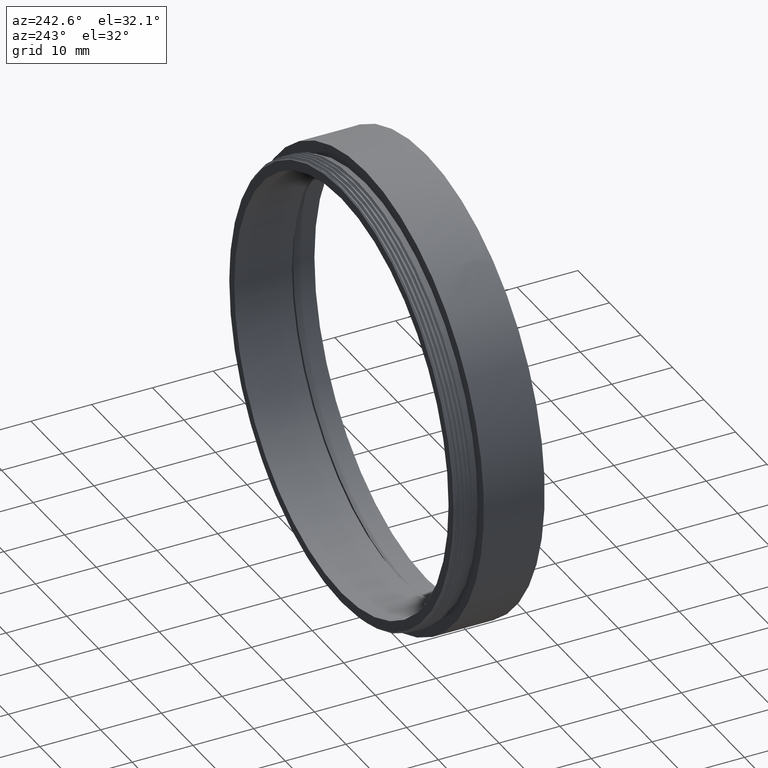
[diagram: clean part render]
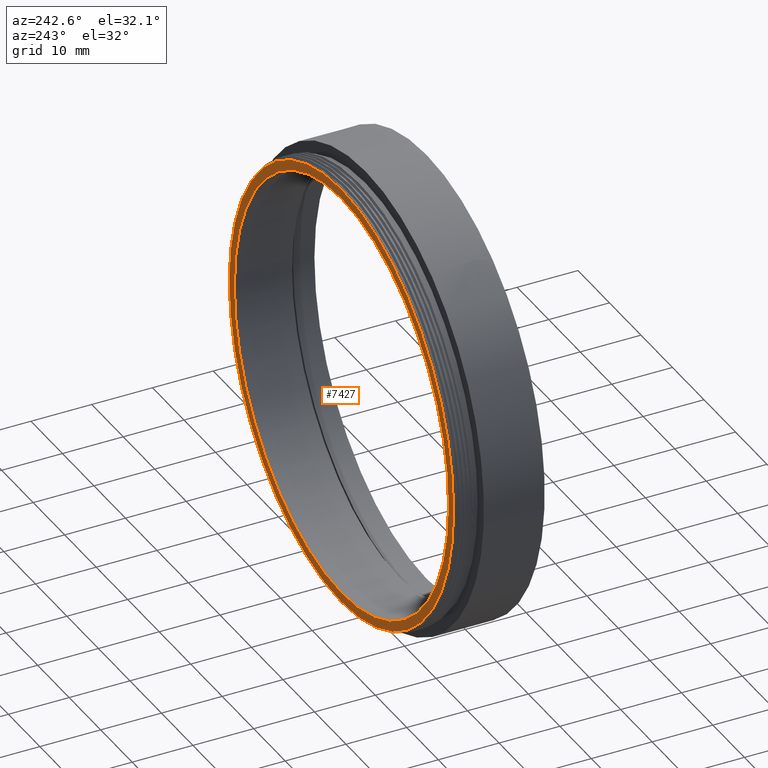
[diagram: same view with one face highlighted and labeled with its STEP entity id]
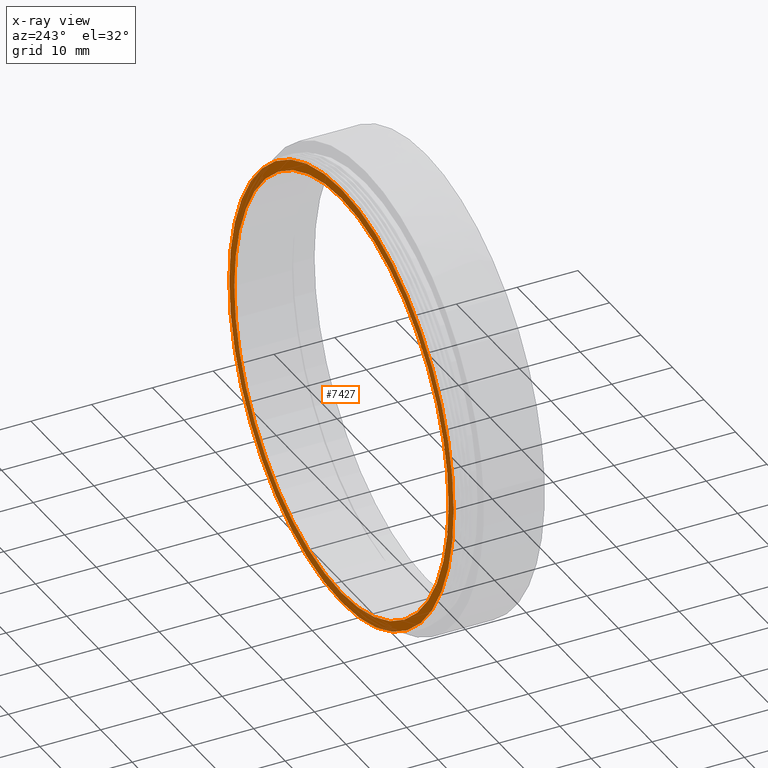
[diagram: x-ray of the same camera — body ghosted, the highlighted face saturated]
A machine part, auxiliary view. The second image highlights one B-rep face of the part: STEP entity #7427.
The next image is the same camera in x-ray: the body ghosted, the highlighted face saturated — about 0% of this face is hidden behind the body in this view.
In plain terms, the highlighted planar face has unit normal (0, -1, -0).
Its self-contained STEP definition (entity closure, byte-faithful):
#366 = VERTEX_POINT ( 'NONE', #6785 ) ;
#386 = EDGE_CURVE ( 'NONE', #15839, #2481, #12137, .T. ) ;
#494 = CIRCLE ( 'NONE', #14001, 34.00000000000002842 ) ;
#781 = EDGE_LOOP ( 'NONE', ( #3441, #8408 ) ) ;
#906 = DIRECTION ( 'NONE',  ( -0.0000000000000000000, -1.000000000000000000, -0.0000000000000000000 ) ) ;
#962 = ORIENTED_EDGE ( 'NONE', *, *, #12413, .F. ) ;
#1506 = DIRECTION ( 'NONE',  ( -0.0000000000000000000, -1.000000000000000000, -0.0000000000000000000 ) ) ;
#2048 = CARTESIAN_POINT ( 'NONE',  ( 0.0000000000000000000, 15.20194186206709297, 0.0000000000000000000 ) ) ;
#2109 = ORIENTED_EDGE ( 'NONE', *, *, #15529, .F. ) ;
#2481 = VERTEX_POINT ( 'NONE', #8703 ) ;
#3441 = ORIENTED_EDGE ( 'NONE', *, *, #386, .T. ) ;
#4327 = DIRECTION ( 'NONE',  ( -0.0000000000000000000, -1.000000000000000000, -0.0000000000000000000 ) ) ;
#4375 = CARTESIAN_POINT ( 'NONE',  ( 0.0000000000000000000, 15.20194186206709297, -34.00000000000002842 ) ) ;
#4462 = AXIS2_PLACEMENT_3D ( 'NONE', #6333, #8640, #13886 ) ;
#4497 = CARTESIAN_POINT ( 'NONE',  ( 0.0000000000000000000, 15.20194186206709297, 0.0000000000000000000 ) ) ;
#4747 = AXIS2_PLACEMENT_3D ( 'NONE', #4497, #4327, #5907 ) ;
#4999 = CIRCLE ( 'NONE', #6081, 35.59999999999863007 ) ;
#5377 = DIRECTION ( 'NONE',  ( 0.0000000000000000000, 0.0000000000000000000, -1.000000000000000000 ) ) ;
#5907 = DIRECTION ( 'NONE',  ( 0.0000000000000000000, 0.0000000000000000000, -1.000000000000000000 ) ) ;
#5959 = EDGE_LOOP ( 'NONE', ( #2109, #962 ) ) ;
#6081 = AXIS2_PLACEMENT_3D ( 'NONE', #2048, #906, #9278 ) ;
#6333 = CARTESIAN_POINT ( 'NONE',  ( -35.59999999999863007, 15.20194186206709297, 0.0000000000000000000 ) ) ;
#6565 = DIRECTION ( 'NONE',  ( 0.0000000000000000000, 0.0000000000000000000, -1.000000000000000000 ) ) ;
#6785 = CARTESIAN_POINT ( 'NONE',  ( 4.384235540947440522E-15, 15.20194186206709297, 35.59999999999863007 ) ) ;
#7427 = ADVANCED_FACE ( 'NONE', ( #11057, #13809 ), #10139, .F. ) ;
#8408 = ORIENTED_EDGE ( 'NONE', *, *, #10679, .T. ) ;
#8640 = DIRECTION ( 'NONE',  ( 0.0000000000000000000, -1.000000000000000000, -0.0000000000000000000 ) ) ;
#8703 = CARTESIAN_POINT ( 'NONE',  ( 4.163799117101004504E-15, 15.20194186206709297, 34.00000000000002842 ) ) ;
#9278 = DIRECTION ( 'NONE',  ( 0.0000000000000000000, 0.0000000000000000000, -1.000000000000000000 ) ) ;
#10022 = AXIS2_PLACEMENT_3D ( 'NONE', #13088, #13008, #5377 ) ;
#10139 = PLANE ( 'NONE',  #4462 ) ;
#10322 = VERTEX_POINT ( 'NONE', #13833 ) ;
#10679 = EDGE_CURVE ( 'NONE', #2481, #15839, #494, .T. ) ;
#11057 = FACE_OUTER_BOUND ( 'NONE', #5959, .T. ) ;
#11104 = CIRCLE ( 'NONE', #4747, 35.59999999999863007 ) ;
#12137 = CIRCLE ( 'NONE', #10022, 34.00000000000002842 ) ;
#12413 = EDGE_CURVE ( 'NONE', #366, #10322, #4999, .T. ) ;
#12866 = CARTESIAN_POINT ( 'NONE',  ( 0.0000000000000000000, 15.20194186206709297, 0.0000000000000000000 ) ) ;
#13008 = DIRECTION ( 'NONE',  ( -0.0000000000000000000, -1.000000000000000000, -0.0000000000000000000 ) ) ;
#13088 = CARTESIAN_POINT ( 'NONE',  ( 0.0000000000000000000, 15.20194186206709297, 0.0000000000000000000 ) ) ;
#13809 = FACE_BOUND ( 'NONE', #781, .T. ) ;
#13833 = CARTESIAN_POINT ( 'NONE',  ( 0.0000000000000000000, 15.20194186206709297, -35.59999999999863007 ) ) ;
#13886 = DIRECTION ( 'NONE',  ( 0.0000000000000000000, 0.0000000000000000000, -1.000000000000000000 ) ) ;
#14001 = AXIS2_PLACEMENT_3D ( 'NONE', #12866, #1506, #6565 ) ;
#15529 = EDGE_CURVE ( 'NONE', #10322, #366, #11104, .T. ) ;
#15839 = VERTEX_POINT ( 'NONE', #4375 ) ;